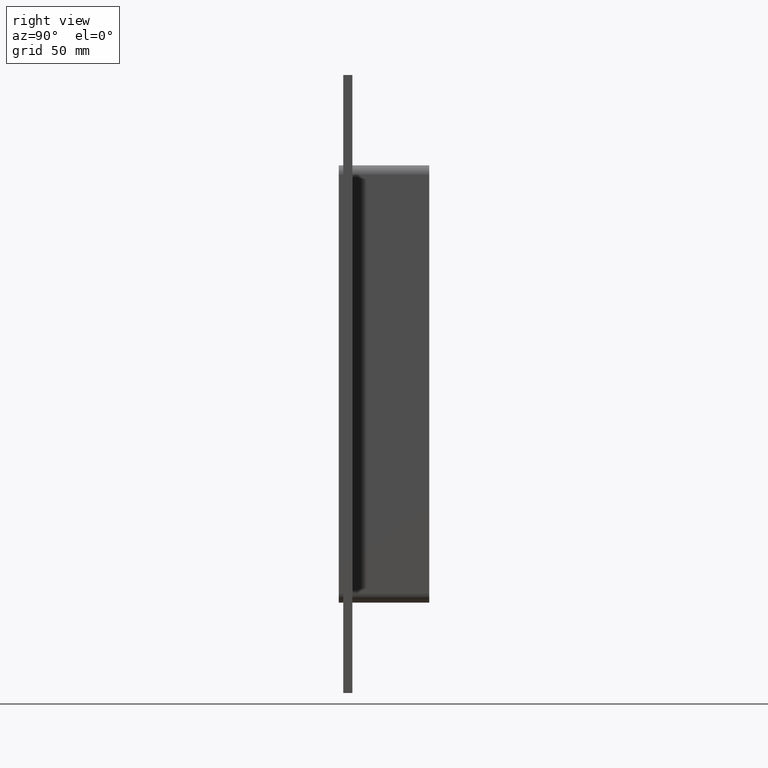
[diagram: clean part render]
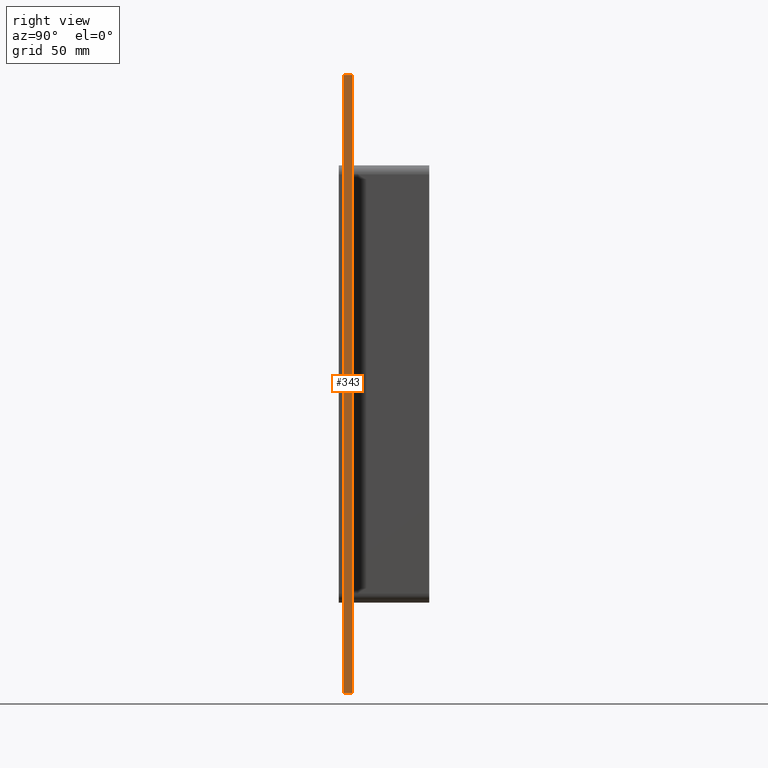
[diagram: same view with one face highlighted and labeled with its STEP entity id]
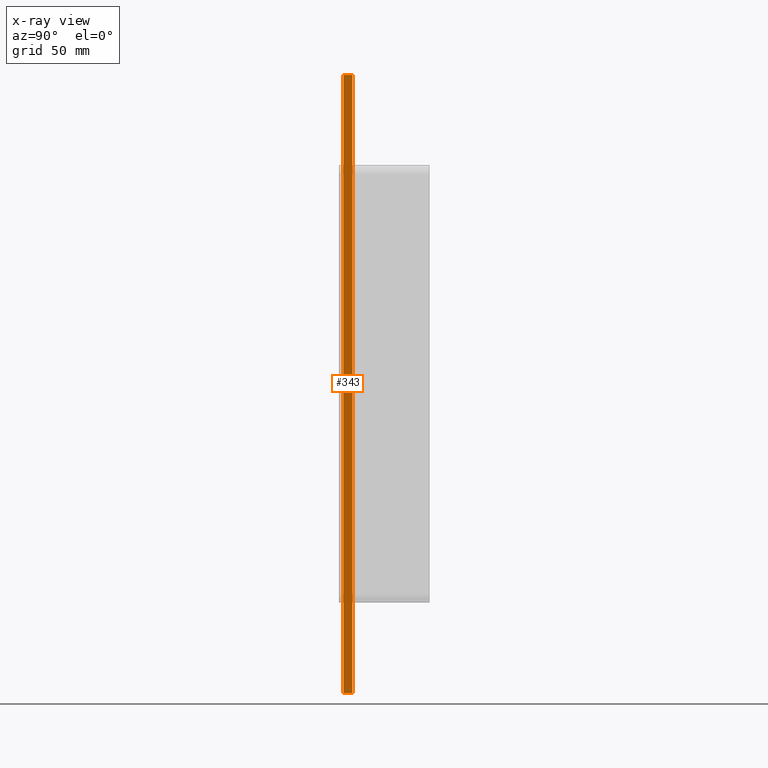
[diagram: x-ray of the same camera — body ghosted, the highlighted face saturated]
A machine part, right view. The second image highlights one B-rep face of the part: STEP entity #343.
The next image is the same camera in x-ray: the body ghosted, the highlighted face saturated — about 0% of this face is hidden behind the body in this view.
In plain terms, the highlighted planar face has unit normal (1, 0, 0).
Its self-contained STEP definition (entity closure, byte-faithful):
#75=CARTESIAN_POINT('',(126.25,6.000000000000001,205.0));
#76=VERTEX_POINT('',#75);
#83=CARTESIAN_POINT('',(126.25,6.000000000000001,-205.0));
#84=VERTEX_POINT('',#83);
#85=CARTESIAN_POINT('',(126.25,6.000000000000001,205.0));
#86=DIRECTION('',(0.0,0.0,-1.0));
#87=VECTOR('',#86,410.0);
#88=LINE('',#85,#87);
#89=EDGE_CURVE('',#76,#84,#88,.T.);
#185=CARTESIAN_POINT('',(126.25,0.0,205.0));
#186=VERTEX_POINT('',#185);
#201=CARTESIAN_POINT('',(126.25,0.0,-205.0));
#202=VERTEX_POINT('',#201);
#209=CARTESIAN_POINT('',(126.25,0.0,205.0));
#210=DIRECTION('',(0.0,0.0,-1.0));
#211=VECTOR('',#210,410.0);
#212=LINE('',#209,#211);
#213=EDGE_CURVE('',#186,#202,#212,.T.);
#318=CARTESIAN_POINT('',(126.25,0.0,-205.0));
#319=DIRECTION('',(0.0,1.0,0.0));
#320=VECTOR('',#319,6.000000000000001);
#321=LINE('',#318,#320);
#322=EDGE_CURVE('',#202,#84,#321,.T.);
#327=CARTESIAN_POINT('',(126.25,0.0,205.0));
#328=DIRECTION('',(1.0,0.0,0.0));
#329=DIRECTION('',(0.0,0.0,-1.0));
#330=AXIS2_PLACEMENT_3D('',#327,#328,#329);
#331=PLANE('',#330);
#332=ORIENTED_EDGE('',*,*,#213,.T.);
#333=ORIENTED_EDGE('',*,*,#322,.T.);
#334=ORIENTED_EDGE('',*,*,#89,.F.);
#335=CARTESIAN_POINT('',(126.25,0.0,205.0));
#336=DIRECTION('',(0.0,1.0,0.0));
#337=VECTOR('',#336,6.000000000000001);
#338=LINE('',#335,#337);
#339=EDGE_CURVE('',#186,#76,#338,.T.);
#340=ORIENTED_EDGE('',*,*,#339,.F.);
#341=EDGE_LOOP('',(#332,#333,#334,#340));
#342=FACE_OUTER_BOUND('',#341,.T.);
#343=ADVANCED_FACE('',(#342),#331,.T.);